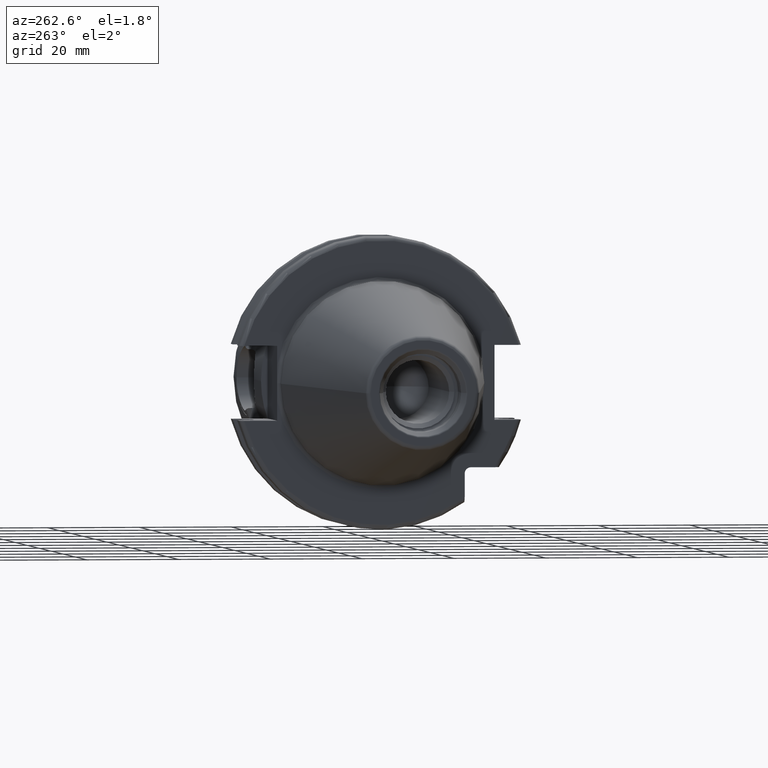
[diagram: clean part render]
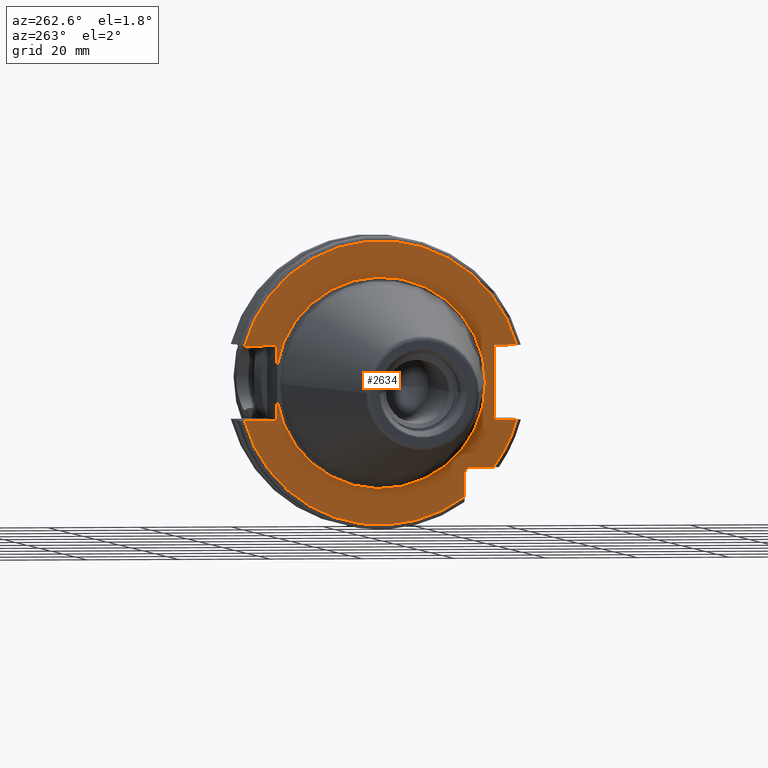
[diagram: same view with one face highlighted and labeled with its STEP entity id]
A machine part, auxiliary view. The second image highlights one B-rep face of the part: STEP entity #2634.
In plain terms, the highlighted planar face has unit normal (1, 0, 0).
Its self-contained STEP definition (entity closure, byte-faithful):
#117=CARTESIAN_POINT('',(3.2E0,0.E0,0.E0));
#118=DIRECTION('',(-1.E0,0.E0,0.E0));
#119=DIRECTION('',(0.E0,9.857923497268E-1,-1.679685780739E-1));
#120=AXIS2_PLACEMENT_3D('',#117,#118,#119);
#734=DIRECTION('',(0.E0,-1.E0,0.E0));
#735=VECTOR('',#734,4.990259339464E0);
#736=CARTESIAN_POINT('',(3.2E0,-1.97E1,-1.835E1));
#737=LINE('',#736,#735);
#738=DIRECTION('',(0.E0,0.E0,1.E0));
#739=VECTOR('',#738,4.990259339464E0);
#740=CARTESIAN_POINT('',(3.2E0,-1.835E1,-2.469025933946E1));
#741=LINE('',#740,#739);
#742=CARTESIAN_POINT('',(3.2E0,0.E0,0.E0));
#743=DIRECTION('',(-1.E0,0.E0,0.E0));
#744=DIRECTION('',(0.E0,9.647119303464E-1,-2.633075985372E-1));
#745=AXIS2_PLACEMENT_3D('',#742,#743,#744);
#747=DIRECTION('',(0.E0,-1.E0,0.E0));
#748=VECTOR('',#747,7.126950757280E0);
#749=CARTESIAN_POINT('',(3.2E0,2.967695075728E1,-8.1E0));
#750=LINE('',#749,#748);
#751=DIRECTION('',(0.E0,0.E0,-1.E0));
#752=VECTOR('',#751,4.257718776560E0);
#753=CARTESIAN_POINT('',(3.2E0,2.255E1,-3.842281223440E0));
#754=LINE('',#753,#752);
#755=DIRECTION('',(0.E0,0.E0,-1.E0));
#756=VECTOR('',#755,4.257718776560E0);
#757=CARTESIAN_POINT('',(3.2E0,2.255E1,8.1E0));
#758=LINE('',#757,#756);
#759=DIRECTION('',(0.E0,-1.E0,0.E0));
#760=VECTOR('',#759,7.126950757280E0);
#761=CARTESIAN_POINT('',(3.2E0,2.967695075728E1,8.1E0));
#762=LINE('',#761,#760);
#763=CARTESIAN_POINT('',(3.2E0,0.E0,0.E0));
#764=DIRECTION('',(1.E0,0.E0,0.E0));
#765=DIRECTION('',(0.E0,9.647119303464E-1,2.633075985372E-1));
#766=AXIS2_PLACEMENT_3D('',#763,#764,#765);
#768=DIRECTION('',(0.E0,1.E0,0.E0));
#769=VECTOR('',#768,4.826950757280E0);
#770=CARTESIAN_POINT('',(3.2E0,-2.967695075728E1,8.1E0));
#771=LINE('',#770,#769);
#772=DIRECTION('',(0.E0,0.E0,1.E0));
#773=VECTOR('',#772,1.62E1);
#774=CARTESIAN_POINT('',(3.2E0,-2.485E1,-8.1E0));
#775=LINE('',#774,#773);
#776=DIRECTION('',(0.E0,1.E0,0.E0));
#777=VECTOR('',#776,4.826950757280E0);
#778=CARTESIAN_POINT('',(3.2E0,-2.967695075728E1,-8.1E0));
#779=LINE('',#778,#777);
#780=CARTESIAN_POINT('',(3.2E0,0.E0,0.E0));
#781=DIRECTION('',(-1.E0,0.E0,0.E0));
#782=DIRECTION('',(0.E0,-8.026089992512E-1,-5.965054855750E-1));
#783=AXIS2_PLACEMENT_3D('',#780,#781,#782);
#794=CARTESIAN_POINT('',(3.2E0,-1.97E1,-1.97E1));
#795=DIRECTION('',(1.E0,0.E0,0.E0));
#796=DIRECTION('',(0.E0,1.E0,0.E0));
#797=AXIS2_PLACEMENT_3D('',#794,#795,#796);
#1184=CARTESIAN_POINT('',(3.2E0,0.E0,0.E0));
#1185=DIRECTION('',(1.E0,0.E0,0.E0));
#1186=DIRECTION('',(0.E0,9.857923497268E-1,1.679685780739E-1));
#1187=AXIS2_PLACEMENT_3D('',#1184,#1185,#1186);
#1483=CARTESIAN_POINT('',(3.2E0,-2.2875E1,0.E0));
#1485=VERTEX_POINT('',#1483);
#1625=CARTESIAN_POINT('',(3.2E0,2.967695075728E1,8.1E0));
#1626=CARTESIAN_POINT('',(3.2E0,2.255E1,8.1E0));
#1627=VERTEX_POINT('',#1625);
#1628=VERTEX_POINT('',#1626);
#1629=CARTESIAN_POINT('',(3.2E0,2.255E1,3.842281223440E0));
#1630=VERTEX_POINT('',#1629);
#1631=CARTESIAN_POINT('',(3.2E0,2.255E1,-3.842281223440E0));
#1632=CARTESIAN_POINT('',(3.2E0,2.255E1,-8.1E0));
#1633=VERTEX_POINT('',#1631);
#1634=VERTEX_POINT('',#1632);
#1635=CARTESIAN_POINT('',(3.2E0,2.967695075728E1,-8.1E0));
#1636=VERTEX_POINT('',#1635);
#1637=CARTESIAN_POINT('',(3.2E0,-2.967695075728E1,-8.1E0));
#1638=CARTESIAN_POINT('',(3.2E0,-2.485E1,-8.1E0));
#1639=VERTEX_POINT('',#1637);
#1640=VERTEX_POINT('',#1638);
#1641=CARTESIAN_POINT('',(3.2E0,-2.485E1,8.1E0));
#1642=VERTEX_POINT('',#1641);
#1643=CARTESIAN_POINT('',(3.2E0,-2.967695075728E1,8.1E0));
#1644=VERTEX_POINT('',#1643);
#1670=CARTESIAN_POINT('',(3.2E0,-1.835E1,-2.469025933946E1));
#1671=VERTEX_POINT('',#1670);
#1678=CARTESIAN_POINT('',(3.2E0,-1.97E1,-1.835E1));
#1679=CARTESIAN_POINT('',(3.2E0,-2.469025933946E1,-1.835E1));
#1680=VERTEX_POINT('',#1678);
#1681=VERTEX_POINT('',#1679);
#1682=CARTESIAN_POINT('',(3.2E0,-1.835E1,-1.97E1));
#1683=VERTEX_POINT('',#1682);
#2605=CARTESIAN_POINT('',(3.2E0,0.E0,0.E0));
#2606=DIRECTION('',(1.E0,0.E0,0.E0));
#2607=DIRECTION('',(0.E0,-1.E0,0.E0));
#2608=AXIS2_PLACEMENT_3D('',#2605,#2606,#2607);
#2609=PLANE('',#2608);
#2611=ORIENTED_EDGE('',*,*,#2610,.F.);
#2613=ORIENTED_EDGE('',*,*,#2612,.F.);
#2615=ORIENTED_EDGE('',*,*,#2614,.F.);
#2617=ORIENTED_EDGE('',*,*,#2616,.F.);
#2618=ORIENTED_EDGE('',*,*,#2245,.T.);
#2619=ORIENTED_EDGE('',*,*,#1915,.F.);
#2620=ORIENTED_EDGE('',*,*,#1896,.T.);
#2622=ORIENTED_EDGE('',*,*,#2621,.F.);
#2623=ORIENTED_EDGE('',*,*,#1910,.F.);
#2624=ORIENTED_EDGE('',*,*,#1973,.F.);
#2626=ORIENTED_EDGE('',*,*,#2625,.T.);
#2627=ORIENTED_EDGE('',*,*,#2584,.T.);
#2628=ORIENTED_EDGE('',*,*,#2325,.F.);
#2629=ORIENTED_EDGE('',*,*,#2360,.F.);
#2631=ORIENTED_EDGE('',*,*,#2630,.F.);
#2632=EDGE_LOOP('',(#2611,#2613,#2615,#2617,#2618,#2619,#2620,#2622,#2623,#2624,
#2626,#2627,#2628,#2629,#2631));
#2633=FACE_OUTER_BOUND('',#2632,.F.);
#2634=ADVANCED_FACE('',(#2633),#2609,.F.);
#121=CIRCLE('',#120,2.2875E1);
#746=CIRCLE('',#745,3.07625E1);
#767=CIRCLE('',#766,3.07625E1);
#784=CIRCLE('',#783,3.07625E1);
#798=CIRCLE('',#797,1.35E0);
#1188=CIRCLE('',#1187,2.2875E1);
#1896=EDGE_CURVE('',#1633,#1485,#121,.T.);
#1910=EDGE_CURVE('',#1628,#1630,#758,.T.);
#1915=EDGE_CURVE('',#1633,#1634,#754,.T.);
#1973=EDGE_CURVE('',#1627,#1628,#762,.T.);
#2245=EDGE_CURVE('',#1636,#1634,#750,.T.);
#2325=EDGE_CURVE('',#1640,#1642,#775,.T.);
#2360=EDGE_CURVE('',#1639,#1640,#779,.T.);
#2584=EDGE_CURVE('',#1644,#1642,#771,.T.);
#2610=EDGE_CURVE('',#1680,#1681,#737,.T.);
#2612=EDGE_CURVE('',#1683,#1680,#798,.T.);
#2614=EDGE_CURVE('',#1671,#1683,#741,.T.);
#2616=EDGE_CURVE('',#1636,#1671,#746,.T.);
#2621=EDGE_CURVE('',#1630,#1485,#1188,.T.);
#2625=EDGE_CURVE('',#1627,#1644,#767,.T.);
#2630=EDGE_CURVE('',#1681,#1639,#784,.T.);